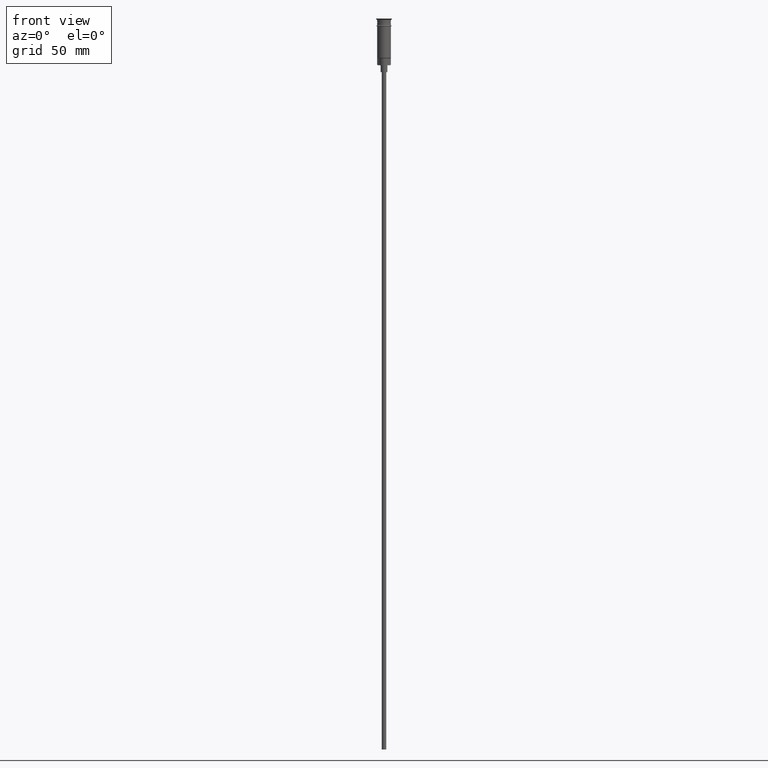
[diagram: clean part render]
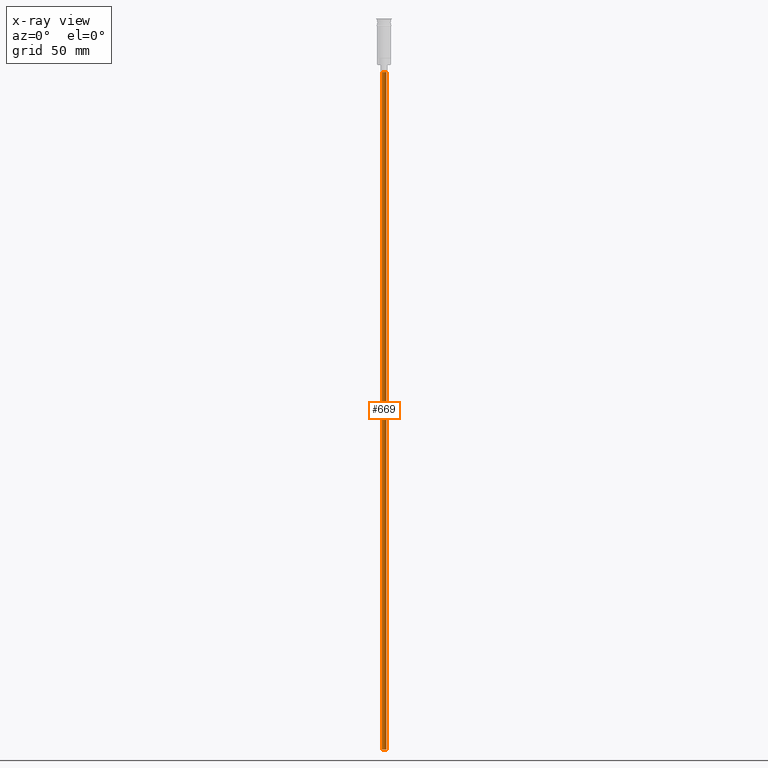
[diagram: x-ray — body ghosted, one internal face saturated and labeled with its STEP entity id]
A machine part, front view, then the same camera in x-ray: the body is ghosted and one INTERNAL B-rep face — a face not visible from any outside direction — is saturated and labeled: STEP entity #669.
In plain terms, the highlighted cylindrical surface (edge-blend (fillet) strip) has radius 1 mm, axis along (-0, -0, 1).
Its self-contained STEP definition (entity closure, byte-faithful):
#26 = AXIS2_PLACEMENT_3D ( 'NONE', #884, #236, #101 ) ;
#31 = DIRECTION ( 'NONE',  ( 1.000000000000000000, 0.000000000000000000, 0.000000000000000000 ) ) ;
#36 = VERTEX_POINT ( 'NONE', #1243 ) ;
#81 = DIRECTION ( 'NONE',  ( 0.000000000000000000, 0.000000000000000000, -1.000000000000000000 ) ) ;
#94 = EDGE_CURVE ( 'NONE', #1200, #822, #900, .T. ) ;
#101 = DIRECTION ( 'NONE',  ( -1.000000000000000000, 0.000000000000000000, 0.000000000000000000 ) ) ;
#214 = CARTESIAN_POINT ( 'NONE',  ( -0.9999999999999997780, 1.224646799147352961E-16, -320.5000000000000000 ) ) ;
#236 = DIRECTION ( 'NONE',  ( 0.000000000000000000, 0.000000000000000000, -1.000000000000000000 ) ) ;
#318 = CARTESIAN_POINT ( 'NONE',  ( 0.000000000000000000, 0.000000000000000000, -23.50000000000000000 ) ) ;
#323 = ORIENTED_EDGE ( 'NONE', *, *, #1182, .T. ) ;
#338 = DIRECTION ( 'NONE',  ( -1.000000000000000000, 0.000000000000000000, 0.000000000000000000 ) ) ;
#457 = CARTESIAN_POINT ( 'NONE',  ( 0.9999999999999997780, 0.000000000000000000, -320.5000000000000000 ) ) ;
#516 = CARTESIAN_POINT ( 'NONE',  ( 0.9999999999999997780, 0.000000000000000000, -320.5000000000000000 ) ) ;
#534 = VERTEX_POINT ( 'NONE', #1242 ) ;
#669 = ADVANCED_FACE ( 'NONE', ( #789 ), #1130, .T. ) ;
#696 = VECTOR ( 'NONE', #836, 1000.000000000000000 ) ;
#698 = CARTESIAN_POINT ( 'NONE',  ( 0.9999999999999997780, 0.000000000000000000, -23.50000000000000000 ) ) ;
#789 = FACE_OUTER_BOUND ( 'NONE', #1438, .T. ) ;
#794 = ORIENTED_EDGE ( 'NONE', *, *, #1329, .T. ) ;
#822 = VERTEX_POINT ( 'NONE', #698 ) ;
#836 = DIRECTION ( 'NONE',  ( -0.000000000000000000, -0.000000000000000000, 1.000000000000000000 ) ) ;
#865 = EDGE_CURVE ( 'NONE', #534, #1200, #1485, .T. ) ;
#871 = DIRECTION ( 'NONE',  ( -0.000000000000000000, -0.000000000000000000, 1.000000000000000000 ) ) ;
#884 = CARTESIAN_POINT ( 'NONE',  ( 0.000000000000000000, 0.000000000000000000, -320.5000000000000000 ) ) ;
#900 = LINE ( 'NONE', #516, #1526 ) ;
#1028 = DIRECTION ( 'NONE',  ( -0.000000000000000000, -0.000000000000000000, 1.000000000000000000 ) ) ;
#1066 = ORIENTED_EDGE ( 'NONE', *, *, #865, .F. ) ;
#1071 = LINE ( 'NONE', #214, #696 ) ;
#1130 = CYLINDRICAL_SURFACE ( 'NONE', #1458, 0.9999999999999997780 ) ;
#1182 = EDGE_CURVE ( 'NONE', #534, #36, #1071, .T. ) ;
#1200 = VERTEX_POINT ( 'NONE', #457 ) ;
#1242 = CARTESIAN_POINT ( 'NONE',  ( -0.9999999999999997780, 1.224646799147352961E-16, -320.5000000000000000 ) ) ;
#1243 = CARTESIAN_POINT ( 'NONE',  ( -0.9999999999999997780, 1.224646799147352961E-16, -23.50000000000000000 ) ) ;
#1329 = EDGE_CURVE ( 'NONE', #36, #822, #1483, .T. ) ;
#1386 = CARTESIAN_POINT ( 'NONE',  ( 0.000000000000000000, 0.000000000000000000, -320.5000000000000000 ) ) ;
#1427 = AXIS2_PLACEMENT_3D ( 'NONE', #318, #81, #338 ) ;
#1438 = EDGE_LOOP ( 'NONE', ( #1066, #323, #794, #1502 ) ) ;
#1458 = AXIS2_PLACEMENT_3D ( 'NONE', #1386, #1028, #31 ) ;
#1483 = CIRCLE ( 'NONE', #1427, 0.9999999999999997780 ) ;
#1485 = CIRCLE ( 'NONE', #26, 0.9999999999999997780 ) ;
#1502 = ORIENTED_EDGE ( 'NONE', *, *, #94, .F. ) ;
#1526 = VECTOR ( 'NONE', #871, 1000.000000000000000 ) ;